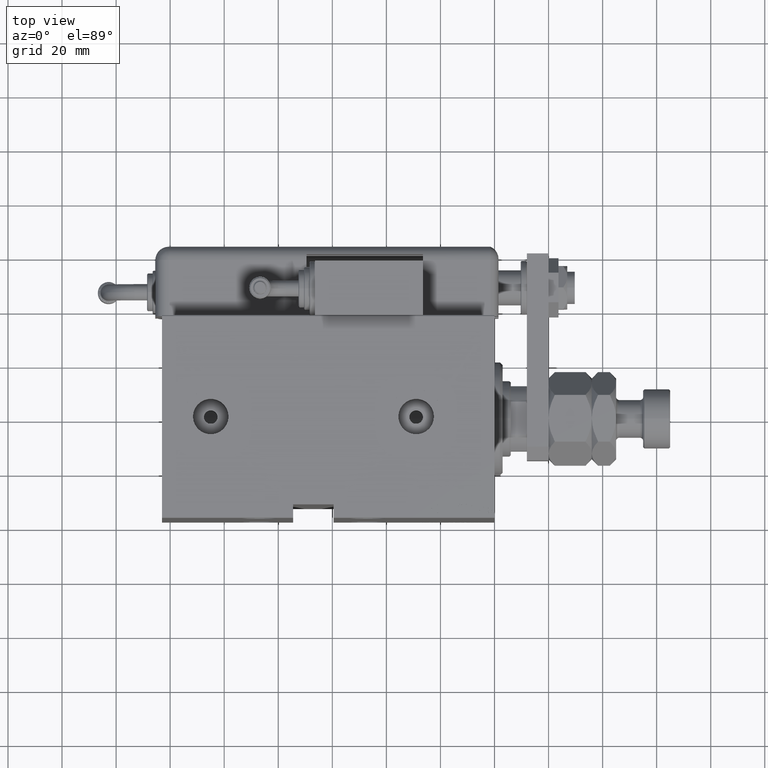
[diagram: clean part render]
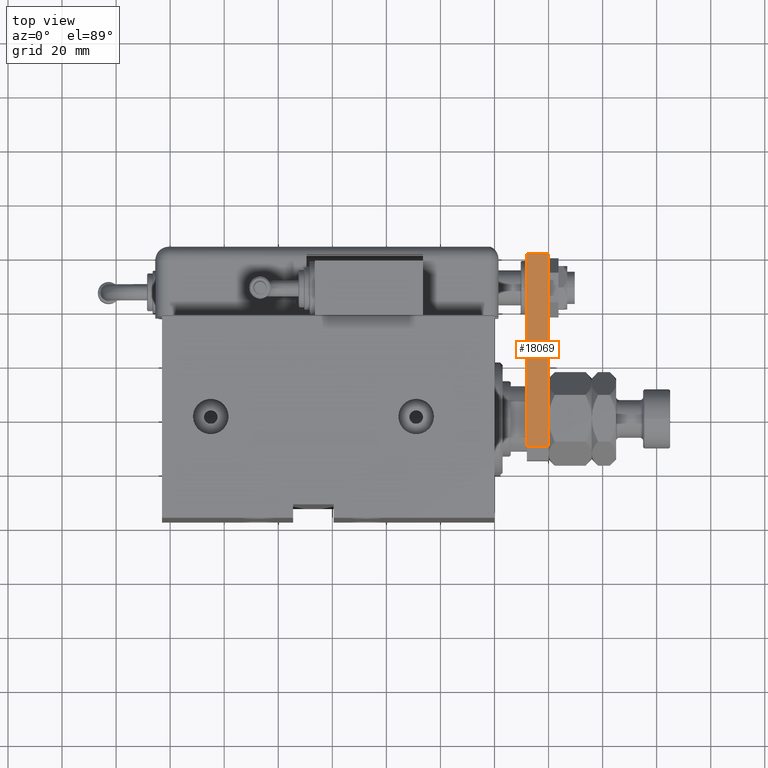
[diagram: same view with one face highlighted and labeled with its STEP entity id]
A machine part, top view. The second image highlights one B-rep face of the part: STEP entity #18069.
In plain terms, the highlighted planar face has unit normal (-0, -0, -1).
Its self-contained STEP definition (entity closure, byte-faithful):
#999 = PLANE ( 'NONE',  #49527 ) ;
#2834 = DIRECTION ( 'NONE',  ( -0.000000000000000000, -0.000000000000000000, -1.000000000000000000 ) ) ;
#3092 = CARTESIAN_POINT ( 'NONE',  ( 15.00000000000000888, 9.629649721936179265E-32, 8.000000000000000000 ) ) ;
#3291 = CARTESIAN_POINT ( 'NONE',  ( 15.00000000000000888, 9.629649721936179265E-32, 0.000000000000000000 ) ) ;
#9845 = CARTESIAN_POINT ( 'NONE',  ( 15.00000000000000355, 76.50000000000000000, 0.000000000000000000 ) ) ;
#10229 = VERTEX_POINT ( 'NONE', #26801 ) ;
#11393 = VECTOR ( 'NONE', #2834, 1000.000000000000000 ) ;
#13183 = LINE ( 'NONE', #21520, #45004 ) ;
#18069 = ADVANCED_FACE ( 'NONE', ( #49317 ), #999, .F. ) ;
#18329 = LINE ( 'NONE', #3291, #58589 ) ;
#20516 = CARTESIAN_POINT ( 'NONE',  ( 15.00000000000000888, 9.629649721936179265E-32, 8.000000000000000000 ) ) ;
#21520 = CARTESIAN_POINT ( 'NONE',  ( 15.00000000000000888, 5.000000000000004441, 8.000000000000000000 ) ) ;
#26217 = CARTESIAN_POINT ( 'NONE',  ( 15.00000000000000355, 76.50000000000000000, 8.000000000000000000 ) ) ;
#26801 = CARTESIAN_POINT ( 'NONE',  ( 15.00000000000000888, 5.000000000000004441, 0.000000000000000000 ) ) ;
#28653 = DIRECTION ( 'NONE',  ( -6.802837160693361638E-17, 1.000000000000000000, 0.000000000000000000 ) ) ;
#29613 = ORIENTED_EDGE ( 'NONE', *, *, #50221, .F. ) ;
#32044 = DIRECTION ( 'NONE',  ( 0.000000000000000000, 0.000000000000000000, -1.000000000000000000 ) ) ;
#32709 = ORIENTED_EDGE ( 'NONE', *, *, #47362, .T. ) ;
#34897 = DIRECTION ( 'NONE',  ( 6.802837160693362871E-17, -1.000000000000000000, 0.000000000000000000 ) ) ;
#37817 = VECTOR ( 'NONE', #28653, 1000.000000000000000 ) ;
#37847 = DIRECTION ( 'NONE',  ( -6.802837160693361638E-17, 1.000000000000000000, 0.000000000000000000 ) ) ;
#38841 = VERTEX_POINT ( 'NONE', #51825 ) ;
#40111 = ORIENTED_EDGE ( 'NONE', *, *, #60922, .T. ) ;
#43934 = CARTESIAN_POINT ( 'NONE',  ( 15.00000000000000355, 76.50000000000000000, 8.000000000000000000 ) ) ;
#45004 = VECTOR ( 'NONE', #32044, 1000.000000000000000 ) ;
#47164 = VERTEX_POINT ( 'NONE', #43934 ) ;
#47362 = EDGE_CURVE ( 'NONE', #38841, #10229, #13183, .T. ) ;
#48134 = EDGE_CURVE ( 'NONE', #38841, #47164, #62951, .T. ) ;
#49317 = FACE_OUTER_BOUND ( 'NONE', #61578, .T. ) ;
#49527 = AXIS2_PLACEMENT_3D ( 'NONE', #20516, #59589, #34897 ) ;
#50221 = EDGE_CURVE ( 'NONE', #47164, #51188, #61103, .T. ) ;
#51188 = VERTEX_POINT ( 'NONE', #9845 ) ;
#51825 = CARTESIAN_POINT ( 'NONE',  ( 15.00000000000000888, 5.000000000000004441, 8.000000000000000000 ) ) ;
#55749 = ORIENTED_EDGE ( 'NONE', *, *, #48134, .F. ) ;
#58589 = VECTOR ( 'NONE', #37847, 1000.000000000000000 ) ;
#59589 = DIRECTION ( 'NONE',  ( -1.000000000000000000, -6.802837160693362871E-17, 0.000000000000000000 ) ) ;
#60922 = EDGE_CURVE ( 'NONE', #10229, #51188, #18329, .T. ) ;
#61103 = LINE ( 'NONE', #26217, #11393 ) ;
#61578 = EDGE_LOOP ( 'NONE', ( #55749, #32709, #40111, #29613 ) ) ;
#62951 = LINE ( 'NONE', #3092, #37817 ) ;